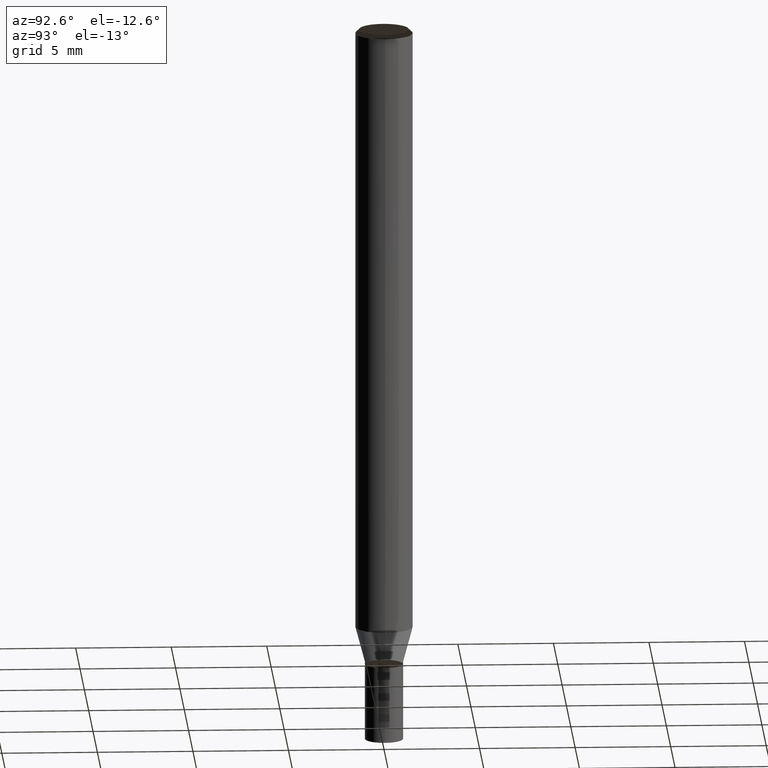
[diagram: clean part render]
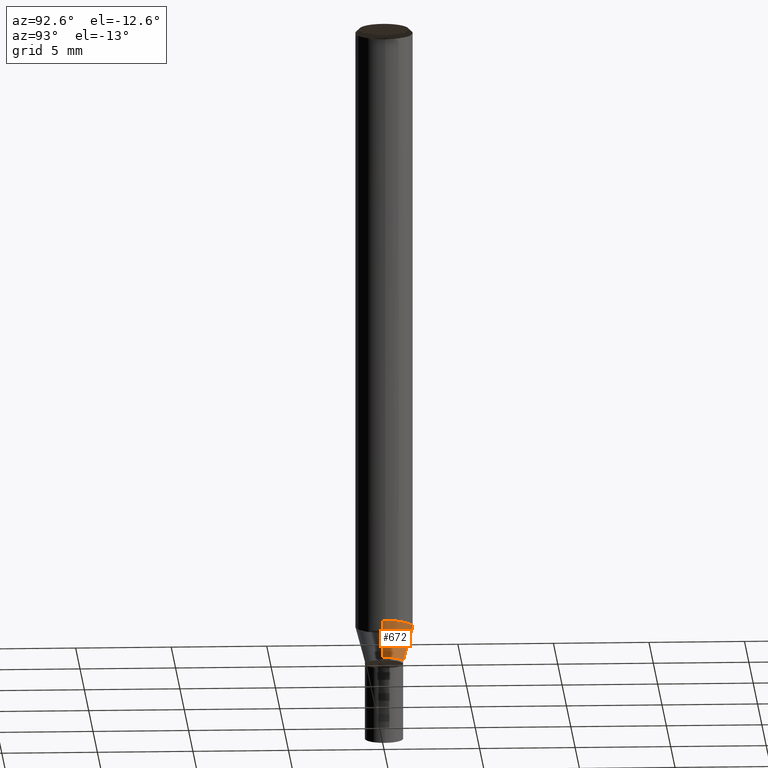
[diagram: same view with one face highlighted and labeled with its STEP entity id]
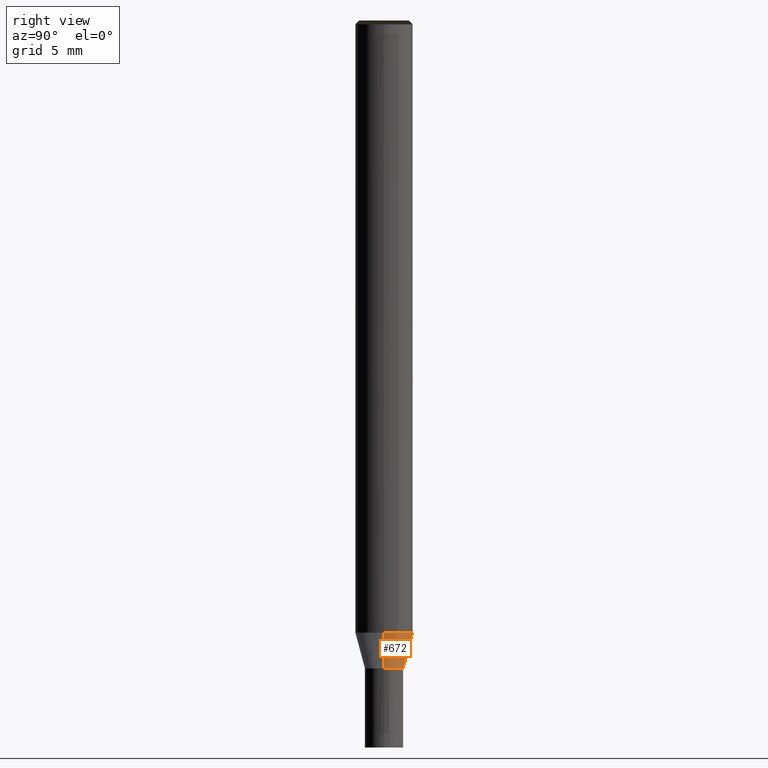
[diagram: same view with one face highlighted and labeled with its STEP entity id]
A machine part, auxiliary view. The second image highlights one B-rep face of the part: STEP entity #672.
A second angle (right view) of the same face is appended — the face is thin or edge-on in the first view.
In plain terms, the highlighted face is a freeform B-spline surface patch.
Its self-contained STEP definition (entity closure, byte-faithful):
#470=CARTESIAN_POINT('',(1.0,0.0,-1.866025403784));
#471=CARTESIAN_POINT('',(1.0,1.0,-1.866025403784));
#472=CARTESIAN_POINT('',(0.0,1.0,-1.866025403784));
#473=CARTESIAN_POINT('',(-1.0,1.0,-1.866025403784));
#474=CARTESIAN_POINT('',(-1.0,0.0,-1.866025403784));
#475=CARTESIAN_POINT('',(1.5,0.0,0.0));
#476=CARTESIAN_POINT('',(1.5,1.5,0.0));
#477=CARTESIAN_POINT('',(0.0,1.5,0.0));
#478=CARTESIAN_POINT('',(-1.5,1.5,0.0));
#479=CARTESIAN_POINT('',(-1.5,0.0,0.0));
#653=(
BOUNDED_SURFACE()
B_SPLINE_SURFACE(1,2,(
(#470,#471,#472,#473,#474),
(#475,#476,#477,#478,#479)
), .UNSPECIFIED.,.F.,.F.,.F.)
B_SPLINE_SURFACE_WITH_KNOTS((2,2),(3,2,3),(
0.0,1.0),(
0.0,0.5,1.0), .UNSPECIFIED.)
GEOMETRIC_REPRESENTATION_ITEM()
RATIONAL_B_SPLINE_SURFACE(((1.0,0.707106781187,1.0,0.707106781187,1.0),
(1.0,0.707106781187,1.0,0.707106781187,1.0)
))
REPRESENTATION_ITEM('')
SURFACE()
);
#654=(
BOUNDED_CURVE()
B_SPLINE_CURVE(2,(#474,#473,#472,#471,#470),.UNSPECIFIED.,.F.,.F.)
B_SPLINE_CURVE_WITH_KNOTS((3,2,3),
(0.0,0.5,1.0),.UNSPECIFIED.)
CURVE()
GEOMETRIC_REPRESENTATION_ITEM()
RATIONAL_B_SPLINE_CURVE((1.0,0.707106781187,1.0,0.707106781187,1.0))
REPRESENTATION_ITEM('')
);
#655=(
BOUNDED_CURVE()
B_SPLINE_CURVE(1,(#470,#475),.UNSPECIFIED.,.F.,.F.)
B_SPLINE_CURVE_WITH_KNOTS((2,2),
(0.0,1.0),.UNSPECIFIED.)
CURVE()
GEOMETRIC_REPRESENTATION_ITEM()
RATIONAL_B_SPLINE_CURVE((1.0,1.0))
REPRESENTATION_ITEM('')
);
#656=(
BOUNDED_CURVE()
B_SPLINE_CURVE(2,(#475,#476,#477,#478,#479),.UNSPECIFIED.,.F.,.F.)
B_SPLINE_CURVE_WITH_KNOTS((3,2,3),
(0.0,0.5,1.0),.UNSPECIFIED.)
CURVE()
GEOMETRIC_REPRESENTATION_ITEM()
RATIONAL_B_SPLINE_CURVE((1.0,0.707106781187,1.0,0.707106781187,1.0))
REPRESENTATION_ITEM('')
);
#657=(
BOUNDED_CURVE()
B_SPLINE_CURVE(1,(#479,#474),.UNSPECIFIED.,.F.,.F.)
B_SPLINE_CURVE_WITH_KNOTS((2,2),
(0.0,1.0),.UNSPECIFIED.)
CURVE()
GEOMETRIC_REPRESENTATION_ITEM()
RATIONAL_B_SPLINE_CURVE((1.0,1.0))
REPRESENTATION_ITEM('')
);
#658=VERTEX_POINT('',#470);
#659=VERTEX_POINT('',#474);
#660=VERTEX_POINT('',#475);
#661=VERTEX_POINT('',#479);
#662=EDGE_CURVE('',#659,#658,#654,.T.);
#663=EDGE_CURVE('',#658,#660,#655,.T.);
#664=EDGE_CURVE('',#660,#661,#656,.T.);
#665=EDGE_CURVE('',#661,#659,#657,.T.);
#666=ORIENTED_EDGE('',*,*,#662,.T.);
#667=ORIENTED_EDGE('',*,*,#663,.T.);
#668=ORIENTED_EDGE('',*,*,#664,.T.);
#669=ORIENTED_EDGE('',*,*,#665,.T.);
#670=EDGE_LOOP('',(#666,#667,#668,#669));
#671=FACE_OUTER_BOUND('',#670,.T.);
#672=ADVANCED_FACE('',(#671),#653,.T.);